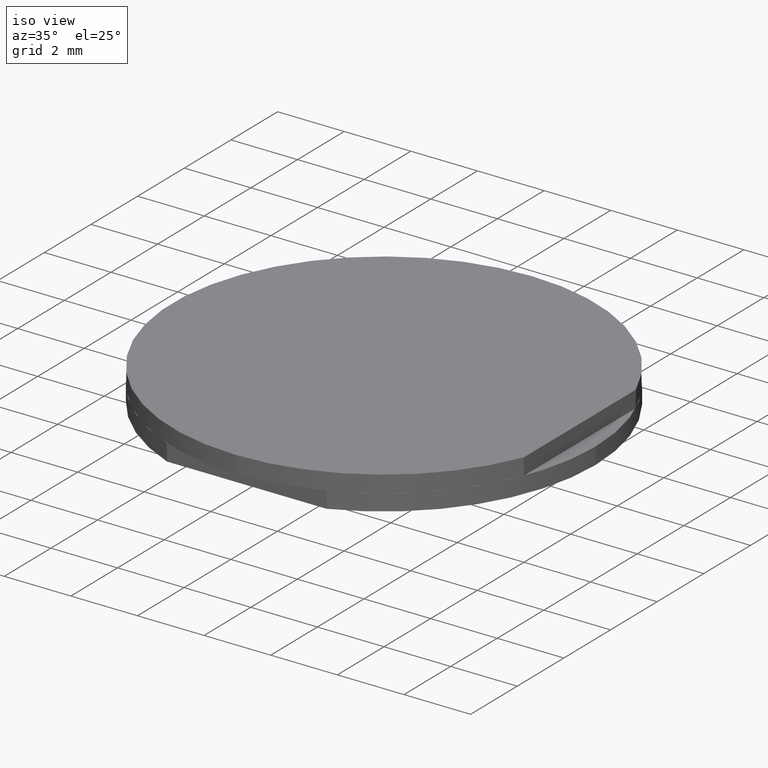
[diagram: clean part render]
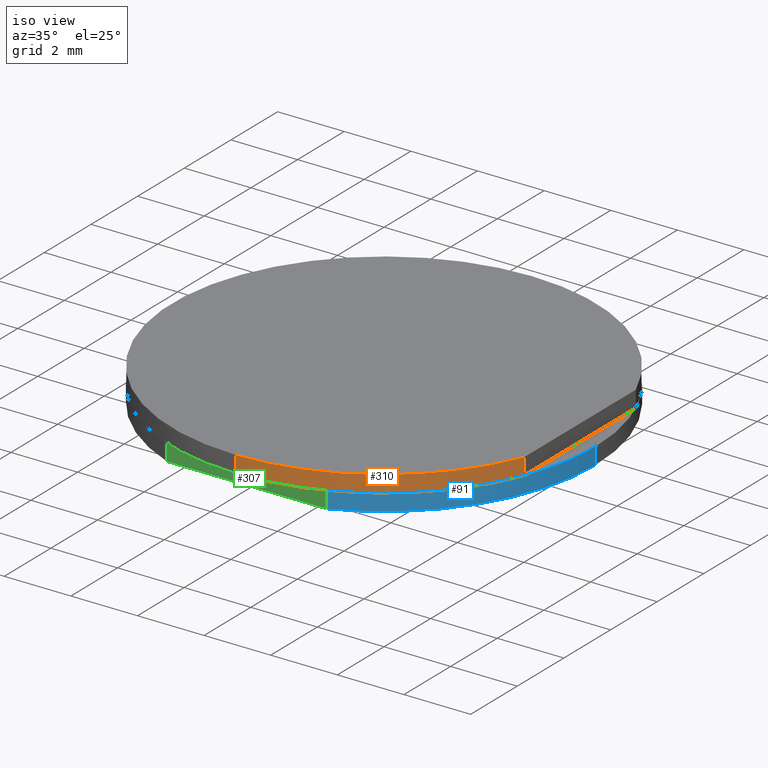
[diagram: same view with three faces highlighted in distinct colors, each labeled with its STEP entity id]
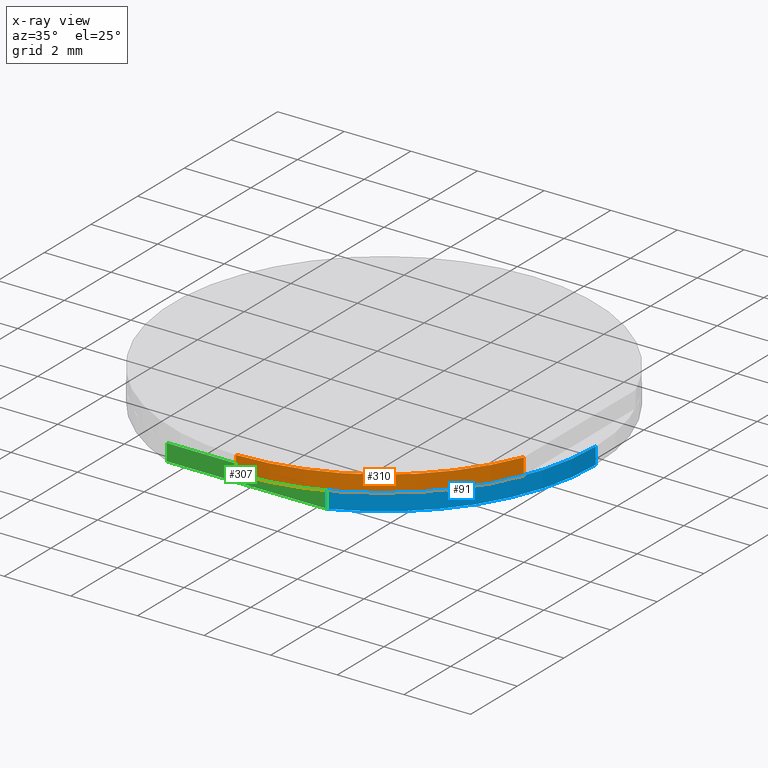
[diagram: x-ray of the same camera — body ghosted, the three highlighted faces saturated]
A machine part, iso view with three faces highlighted in distinct colors.
The next image is the same camera in x-ray (body ghosted, the three faces saturated) — at least one of them is partly hidden behind the body in this view.
Their STEP definitions:

[orange] entity #310 — the highlighted cylindrical surface (partial cylindrical patch) has radius 6.35 mm, axis along (0, -0, -1).
#11 = CARTESIAN_POINT ( 'NONE',  ( 12.17957565082418014, -0.8299026143560144231, 4.486184743181586221 ) ) ;
#14 = DIRECTION ( 'NONE',  ( 0.0000000000000000000, 0.0000000000000000000, 1.000000000000000000 ) ) ;
#17 = EDGE_CURVE ( 'NONE', #458, #419, #405, .T. ) ;
#30 = AXIS2_PLACEMENT_3D ( 'NONE', #268, #14, #333 ) ;
#54 = DIRECTION ( 'NONE',  ( 0.0000000000000000000, -0.0000000000000000000, -1.000000000000000000 ) ) ;
#57 = CARTESIAN_POINT ( 'NONE',  ( 12.17957565082418014, -7.179902614356014290, 4.486184743181586221 ) ) ;
#63 = CARTESIAN_POINT ( 'NONE',  ( 12.17957565082418014, -7.179902614356014290, 4.486184743181586221 ) ) ;
#70 = ORIENTED_EDGE ( 'NONE', *, *, #76, .T. ) ;
#76 = EDGE_CURVE ( 'NONE', #458, #420, #426, .T. ) ;
#85 = FACE_OUTER_BOUND ( 'NONE', #157, .T. ) ;
#87 = DIRECTION ( 'NONE',  ( 0.0000000000000000000, 0.0000000000000000000, 1.000000000000000000 ) ) ;
#114 = CARTESIAN_POINT ( 'NONE',  ( 18.05957565082417915, -3.227422165892561257, 4.486184743181586221 ) ) ;
#117 = AXIS2_PLACEMENT_3D ( 'NONE', #11, #183, #315 ) ;
#157 = EDGE_LOOP ( 'NONE', ( #425, #70, #462, #242 ) ) ;
#177 = CARTESIAN_POINT ( 'NONE',  ( 18.05957565082417915, -3.227422165892561257, 4.486184743181586221 ) ) ;
#183 = DIRECTION ( 'NONE',  ( 0.0000000000000000000, -0.0000000000000000000, -1.000000000000000000 ) ) ;
#242 = ORIENTED_EDGE ( 'NONE', *, *, #544, .T. ) ;
#250 = VERTEX_POINT ( 'NONE', #254 ) ;
#254 = CARTESIAN_POINT ( 'NONE',  ( 18.05957565082417915, -3.227422165892561257, 3.986184743181585777 ) ) ;
#268 = CARTESIAN_POINT ( 'NONE',  ( 12.17957565082418014, -0.8299026143560144231, 3.986184743181585777 ) ) ;
#281 = CARTESIAN_POINT ( 'NONE',  ( 12.17957565082418014, -7.179902614356014290, 3.986184743181585777 ) ) ;
#310 = ADVANCED_FACE ( 'NONE', ( #85 ), #396, .T. ) ;
#315 = DIRECTION ( 'NONE',  ( 0.0000000000000000000, -1.000000000000000000, 0.0000000000000000000 ) ) ;
#333 = DIRECTION ( 'NONE',  ( 0.0000000000000000000, 1.000000000000000000, 0.0000000000000000000 ) ) ;
#343 = VECTOR ( 'NONE', #54, 1000.000000000000000 ) ;
#386 = CIRCLE ( 'NONE', #30, 6.349999999999999645 ) ;
#396 = CYLINDRICAL_SURFACE ( 'NONE', #117, 6.349999999999999645 ) ;
#400 = DIRECTION ( 'NONE',  ( -0.0000000000000000000, 0.0000000000000000000, 1.000000000000000000 ) ) ;
#405 = CIRCLE ( 'NONE', #410, 6.349999999999999645 ) ;
#410 = AXIS2_PLACEMENT_3D ( 'NONE', #550, #87, #518 ) ;
#419 = VERTEX_POINT ( 'NONE', #114 ) ;
#420 = VERTEX_POINT ( 'NONE', #281 ) ;
#425 = ORIENTED_EDGE ( 'NONE', *, *, #17, .F. ) ;
#426 = LINE ( 'NONE', #57, #343 ) ;
#445 = EDGE_CURVE ( 'NONE', #420, #250, #386, .T. ) ;
#458 = VERTEX_POINT ( 'NONE', #63 ) ;
#462 = ORIENTED_EDGE ( 'NONE', *, *, #445, .T. ) ;
#477 = LINE ( 'NONE', #177, #480 ) ;
#480 = VECTOR ( 'NONE', #400, 1000.000000000000000 ) ;
#518 = DIRECTION ( 'NONE',  ( 0.0000000000000000000, 1.000000000000000000, 0.0000000000000000000 ) ) ;
#544 = EDGE_CURVE ( 'NONE', #250, #419, #477, .T. ) ;
#550 = CARTESIAN_POINT ( 'NONE',  ( 12.17957565082418014, -0.8299026143560144231, 4.486184743181586221 ) ) ;

[blue] entity #91 — the highlighted cylindrical surface (partial cylindrical patch) has radius 6.35 mm, axis along (-0, -0, -1).
#8 = CIRCLE ( 'NONE', #123, 6.349999999999997868 ) ;
#12 = CYLINDRICAL_SURFACE ( 'NONE', #269, 6.349999999999999645 ) ;
#21 = DIRECTION ( 'NONE',  ( 0.0000000000000000000, 0.0000000000000000000, 1.000000000000000000 ) ) ;
#36 = CARTESIAN_POINT ( 'NONE',  ( 12.17957565082418014, -0.8299026143560144231, 3.486184743181585333 ) ) ;
#51 = CARTESIAN_POINT ( 'NONE',  ( 12.17957565082418014, -0.8299026143560144231, 3.986184743181585777 ) ) ;
#88 = AXIS2_PLACEMENT_3D ( 'NONE', #51, #348, #176 ) ;
#91 = ADVANCED_FACE ( 'NONE', ( #475 ), #12, .T. ) ;
#92 = CARTESIAN_POINT ( 'NONE',  ( 14.57709520236072720, -6.709902614356014539, 3.986184743181585777 ) ) ;
#93 = EDGE_CURVE ( 'NONE', #508, #255, #188, .T. ) ;
#111 = CARTESIAN_POINT ( 'NONE',  ( 18.52957565082417801, -0.8299026143560136459, 3.486184743181585333 ) ) ;
#123 = AXIS2_PLACEMENT_3D ( 'NONE', #36, #21, #213 ) ;
#156 = VERTEX_POINT ( 'NONE', #397 ) ;
#169 = EDGE_LOOP ( 'NONE', ( #453, #332, #246, #411 ) ) ;
#175 = DIRECTION ( 'NONE',  ( -1.000000000000000000, 0.0000000000000000000, 0.0000000000000000000 ) ) ;
#176 = DIRECTION ( 'NONE',  ( 1.000000000000000000, 0.0000000000000000000, 0.0000000000000000000 ) ) ;
#188 = CIRCLE ( 'NONE', #88, 6.349999999999997868 ) ;
#193 = CARTESIAN_POINT ( 'NONE',  ( 18.52957565082417801, -0.8299026143560136459, 3.986184743181585777 ) ) ;
#200 = LINE ( 'NONE', #533, #340 ) ;
#208 = VERTEX_POINT ( 'NONE', #111 ) ;
#213 = DIRECTION ( 'NONE',  ( 1.000000000000000000, 0.0000000000000000000, 0.0000000000000000000 ) ) ;
#246 = ORIENTED_EDGE ( 'NONE', *, *, #417, .T. ) ;
#255 = VERTEX_POINT ( 'NONE', #461 ) ;
#269 = AXIS2_PLACEMENT_3D ( 'NONE', #317, #485, #175 ) ;
#271 = EDGE_CURVE ( 'NONE', #156, #208, #8, .T. ) ;
#280 = EDGE_CURVE ( 'NONE', #255, #208, #336, .T. ) ;
#317 = CARTESIAN_POINT ( 'NONE',  ( 12.17957565082418014, -0.8299026143560144231, 3.986184743181585777 ) ) ;
#332 = ORIENTED_EDGE ( 'NONE', *, *, #93, .F. ) ;
#336 = LINE ( 'NONE', #193, #547 ) ;
#340 = VECTOR ( 'NONE', #542, 1000.000000000000000 ) ;
#348 = DIRECTION ( 'NONE',  ( 0.0000000000000000000, 0.0000000000000000000, 1.000000000000000000 ) ) ;
#397 = CARTESIAN_POINT ( 'NONE',  ( 14.57709520236072720, -6.709902614356014539, 3.486184743181585333 ) ) ;
#411 = ORIENTED_EDGE ( 'NONE', *, *, #271, .T. ) ;
#417 = EDGE_CURVE ( 'NONE', #508, #156, #200, .T. ) ;
#453 = ORIENTED_EDGE ( 'NONE', *, *, #280, .F. ) ;
#461 = CARTESIAN_POINT ( 'NONE',  ( 18.52957565082417801, -0.8299026143560136459, 3.986184743181585777 ) ) ;
#475 = FACE_OUTER_BOUND ( 'NONE', #169, .T. ) ;
#485 = DIRECTION ( 'NONE',  ( -0.0000000000000000000, -0.0000000000000000000, -1.000000000000000000 ) ) ;
#508 = VERTEX_POINT ( 'NONE', #92 ) ;
#533 = CARTESIAN_POINT ( 'NONE',  ( 14.57709520236072720, -6.709902614356014539, 3.986184743181585777 ) ) ;
#537 = DIRECTION ( 'NONE',  ( -0.0000000000000000000, -0.0000000000000000000, -1.000000000000000000 ) ) ;
#542 = DIRECTION ( 'NONE',  ( -0.0000000000000000000, -0.0000000000000000000, -1.000000000000000000 ) ) ;
#547 = VECTOR ( 'NONE', #537, 1000.000000000000000 ) ;

[green] entity #307 — the highlighted planar face has unit normal (-0, 1, 0).
#24 = CARTESIAN_POINT ( 'NONE',  ( 12.17957565082418014, -6.709902614356014539, 3.486184743181585333 ) ) ;
#33 = FACE_OUTER_BOUND ( 'NONE', #75, .T. ) ;
#46 = DIRECTION ( 'NONE',  ( -1.000000000000000000, -0.0000000000000000000, -0.0000000000000000000 ) ) ;
#75 = EDGE_LOOP ( 'NONE', ( #368, #467, #414, #506 ) ) ;
#78 = VERTEX_POINT ( 'NONE', #525 ) ;
#92 = CARTESIAN_POINT ( 'NONE',  ( 14.57709520236072720, -6.709902614356014539, 3.986184743181585777 ) ) ;
#105 = CARTESIAN_POINT ( 'NONE',  ( 9.782056099287634865, -6.709902614356014539, 3.986184743181585777 ) ) ;
#106 = VECTOR ( 'NONE', #290, 1000.000000000000000 ) ;
#129 = LINE ( 'NONE', #472, #212 ) ;
#131 = DIRECTION ( 'NONE',  ( 0.0000000000000000000, -0.0000000000000000000, 1.000000000000000000 ) ) ;
#143 = DIRECTION ( 'NONE',  ( -1.000000000000000000, -0.0000000000000000000, 0.0000000000000000000 ) ) ;
#156 = VERTEX_POINT ( 'NONE', #397 ) ;
#158 = EDGE_CURVE ( 'NONE', #508, #539, #129, .T. ) ;
#165 = EDGE_CURVE ( 'NONE', #156, #78, #240, .T. ) ;
#200 = LINE ( 'NONE', #533, #340 ) ;
#202 = EDGE_CURVE ( 'NONE', #78, #539, #278, .T. ) ;
#207 = PLANE ( 'NONE',  #237 ) ;
#212 = VECTOR ( 'NONE', #46, 1000.000000000000000 ) ;
#237 = AXIS2_PLACEMENT_3D ( 'NONE', #474, #519, #131 ) ;
#240 = LINE ( 'NONE', #24, #538 ) ;
#278 = LINE ( 'NONE', #105, #106 ) ;
#290 = DIRECTION ( 'NONE',  ( 0.0000000000000000000, 0.0000000000000000000, 1.000000000000000000 ) ) ;
#307 = ADVANCED_FACE ( 'NONE', ( #33 ), #207, .F. ) ;
#340 = VECTOR ( 'NONE', #542, 1000.000000000000000 ) ;
#354 = CARTESIAN_POINT ( 'NONE',  ( 9.782056099287634865, -6.709902614356014539, 3.986184743181585777 ) ) ;
#368 = ORIENTED_EDGE ( 'NONE', *, *, #158, .T. ) ;
#397 = CARTESIAN_POINT ( 'NONE',  ( 14.57709520236072720, -6.709902614356014539, 3.486184743181585333 ) ) ;
#414 = ORIENTED_EDGE ( 'NONE', *, *, #165, .F. ) ;
#417 = EDGE_CURVE ( 'NONE', #508, #156, #200, .T. ) ;
#467 = ORIENTED_EDGE ( 'NONE', *, *, #202, .F. ) ;
#472 = CARTESIAN_POINT ( 'NONE',  ( 6.292237577133167115, -6.709902614356014539, 3.986184743181585777 ) ) ;
#474 = CARTESIAN_POINT ( 'NONE',  ( 6.292237577133167115, -6.709902614356014539, 3.486184743181585333 ) ) ;
#506 = ORIENTED_EDGE ( 'NONE', *, *, #417, .F. ) ;
#508 = VERTEX_POINT ( 'NONE', #92 ) ;
#519 = DIRECTION ( 'NONE',  ( -0.0000000000000000000, 1.000000000000000000, 0.0000000000000000000 ) ) ;
#525 = CARTESIAN_POINT ( 'NONE',  ( 9.782056099287634865, -6.709902614356014539, 3.486184743181585333 ) ) ;
#533 = CARTESIAN_POINT ( 'NONE',  ( 14.57709520236072720, -6.709902614356014539, 3.986184743181585777 ) ) ;
#538 = VECTOR ( 'NONE', #143, 1000.000000000000000 ) ;
#539 = VERTEX_POINT ( 'NONE', #354 ) ;
#542 = DIRECTION ( 'NONE',  ( -0.0000000000000000000, -0.0000000000000000000, -1.000000000000000000 ) ) ;